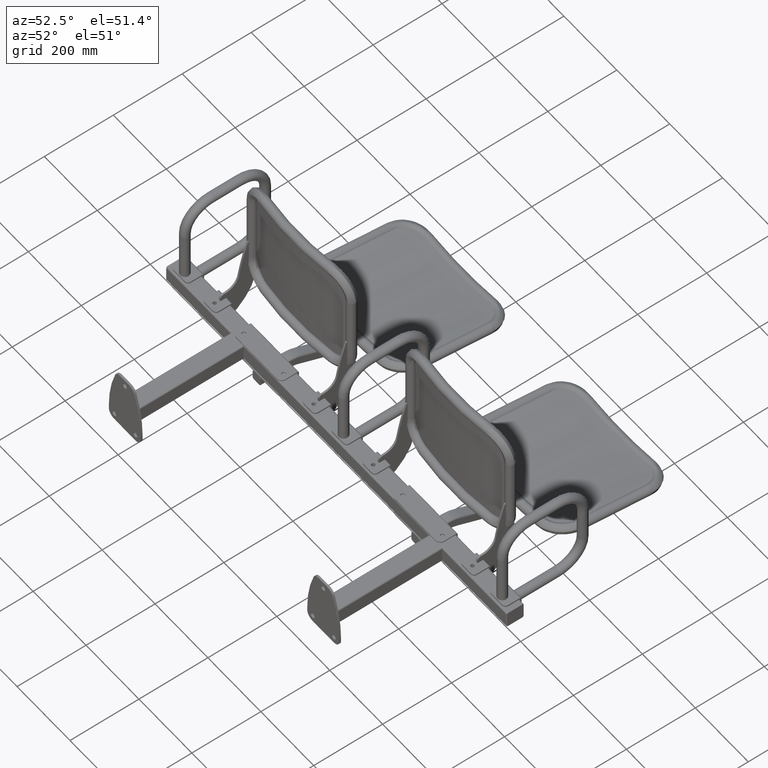
[diagram: clean part render]
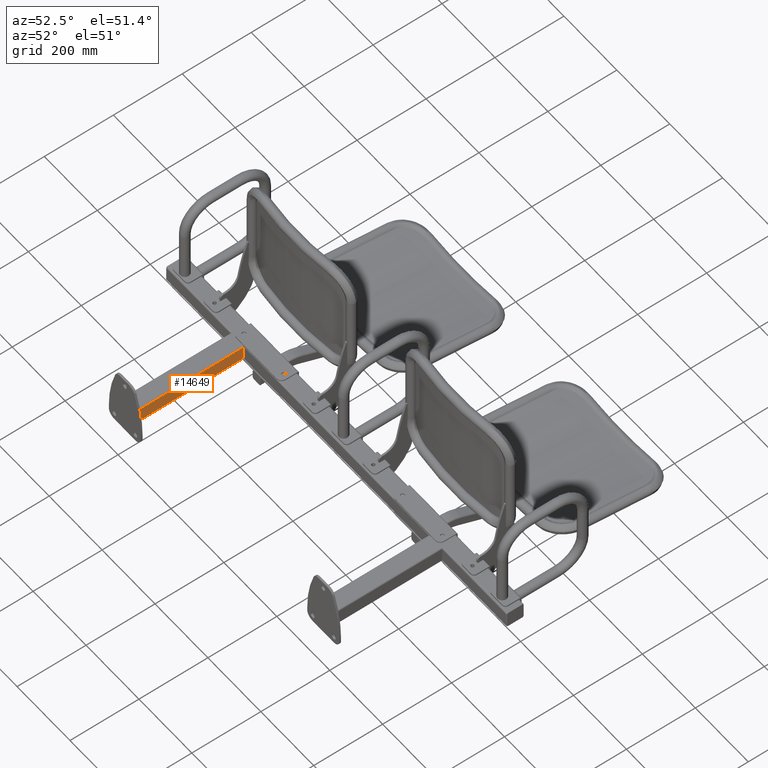
[diagram: same view with one face highlighted and labeled with its STEP entity id]
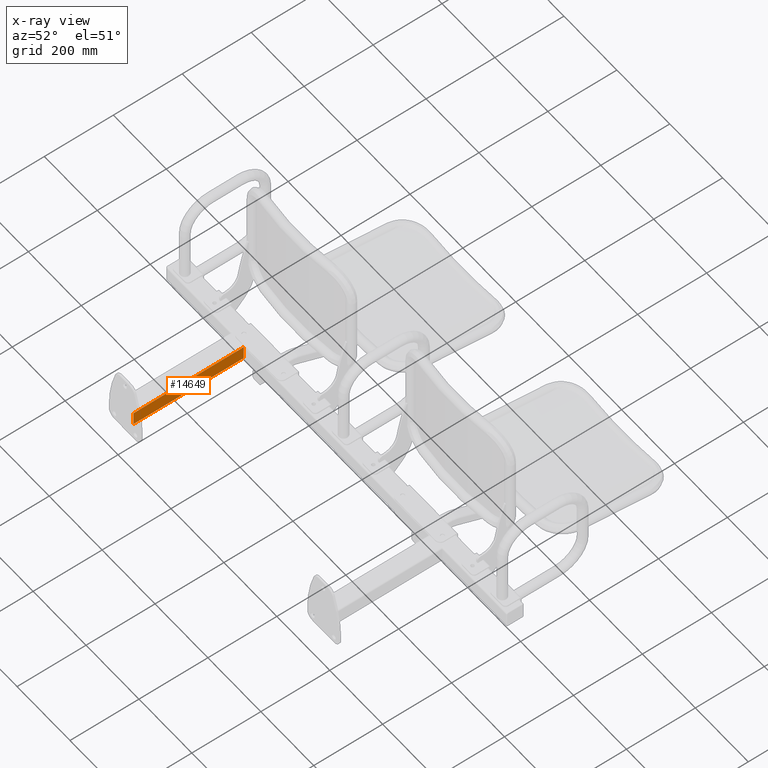
[diagram: x-ray of the same camera — body ghosted, the highlighted face saturated]
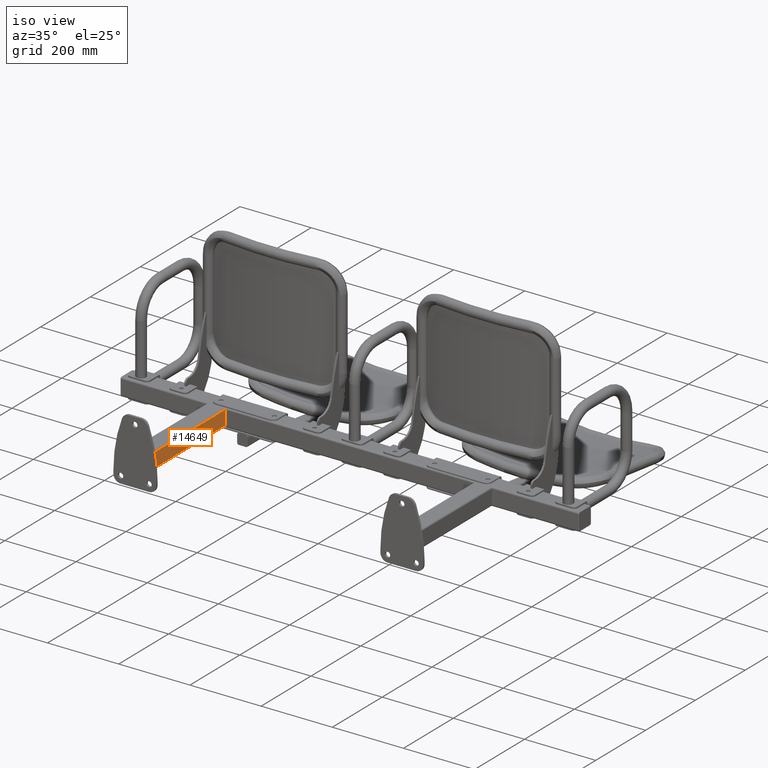
[diagram: same view with one face highlighted and labeled with its STEP entity id]
A machine part, auxiliary view. The second image highlights one B-rep face of the part: STEP entity #14649.
The next image is the same camera in x-ray: the body ghosted, the highlighted face saturated — about 0% of this face is hidden behind the body in this view.
A second angle (iso view) of the same face is appended — the face is thin or edge-on in the first view.
In plain terms, the highlighted planar face has unit normal (-1, 0, 0).
Its self-contained STEP definition (entity closure, byte-faithful):
#579 = CARTESIAN_POINT ( 'NONE',  ( -349.9999999999999400, 326.0000000000000000, -19.99999999999999600 ) ) ;
#583 = CARTESIAN_POINT ( 'NONE',  ( -350.0000000000000000, 6.000000000000000000, 20.00000000000000000 ) ) ;
#634 = CARTESIAN_POINT ( 'NONE',  ( -350.0000000000000000, 6.000000000000000000, -19.99999999999999600 ) ) ;
#862 = CARTESIAN_POINT ( 'NONE',  ( -349.9999999999999400, 326.0000000000000000, -19.99999999999999600 ) ) ;
#863 = DIRECTION ( 'NONE',  ( 1.734723475976807100E-016, 1.000000000000000000, 0.0000000000000000000 ) ) ;
#864 = CARTESIAN_POINT ( 'NONE',  ( -349.9999999999999400, 326.0000000000000000, 25.00000000000000000 ) ) ;
#866 = DIRECTION ( 'NONE',  ( -0.0000000000000000000, -0.0000000000000000000, -1.000000000000000000 ) ) ;
#867 = DIRECTION ( 'NONE',  ( -1.734723475976807100E-016, -1.000000000000000000, -0.0000000000000000000 ) ) ;
#2258 = VERTEX_POINT ( 'NONE', #12569 ) ;
#4664 = ORIENTED_EDGE ( 'NONE', *, *, #17199, .T. ) ;
#4665 = ORIENTED_EDGE ( 'NONE', *, *, #17198, .F. ) ;
#4666 = ORIENTED_EDGE ( 'NONE', *, *, #17197, .T. ) ;
#4667 = ORIENTED_EDGE ( 'NONE', *, *, #16857, .T. ) ;
#8434 = LINE ( 'NONE', #17869, #8436 ) ;
#8436 = VECTOR ( 'NONE', #17870, 1000.000000000000000 ) ;
#8696 = LINE ( 'NONE', #14307, #8707 ) ;
#8700 = LINE ( 'NONE', #862, #8703 ) ;
#8702 = LINE ( 'NONE', #864, #8705 ) ;
#8703 = VECTOR ( 'NONE', #863, 1000.000000000000000 ) ;
#8705 = VECTOR ( 'NONE', #866, 1000.000000000000000 ) ;
#8707 = VECTOR ( 'NONE', #867, 1000.000000000000000 ) ;
#9414 = AXIS2_PLACEMENT_3D ( 'NONE', #9873, #9883, #9885 ) ;
#9870 = PLANE ( 'NONE',  #9414 ) ;
#9873 = CARTESIAN_POINT ( 'NONE',  ( -350.0000000000000000, 6.000000000000000000, 25.00000000000000000 ) ) ;
#9883 = DIRECTION ( 'NONE',  ( -1.000000000000000000, 1.734723475976807100E-016, 0.0000000000000000000 ) ) ;
#9885 = DIRECTION ( 'NONE',  ( -1.734723475976807100E-016, -1.000000000000000000, 0.0000000000000000000 ) ) ;
#11931 = EDGE_LOOP ( 'NONE', ( #4667, #4666, #4665, #4664 ) ) ;
#12012 = VERTEX_POINT ( 'NONE', #579 ) ;
#12019 = VERTEX_POINT ( 'NONE', #583 ) ;
#12569 = CARTESIAN_POINT ( 'NONE',  ( -349.9999999999999400, 326.0000000000000000, 20.00000000000000000 ) ) ;
#13264 = VERTEX_POINT ( 'NONE', #634 ) ;
#14307 = CARTESIAN_POINT ( 'NONE',  ( -350.0000000000000000, 6.000000000000000000, 20.00000000000000000 ) ) ;
#14649 = ADVANCED_FACE ( 'NONE', ( #16974 ), #9870, .F. ) ;
#16857 = EDGE_CURVE ( 'NONE', #12019, #13264, #8434, .T. ) ;
#16974 = FACE_OUTER_BOUND ( 'NONE', #11931, .T. ) ;
#17197 = EDGE_CURVE ( 'NONE', #13264, #12012, #8700, .T. ) ;
#17198 = EDGE_CURVE ( 'NONE', #2258, #12012, #8702, .T. ) ;
#17199 = EDGE_CURVE ( 'NONE', #2258, #12019, #8696, .T. ) ;
#17869 = CARTESIAN_POINT ( 'NONE',  ( -350.0000000000000000, 6.000000000000000000, 25.00000000000000000 ) ) ;
#17870 = DIRECTION ( 'NONE',  ( -0.0000000000000000000, -0.0000000000000000000, -1.000000000000000000 ) ) ;